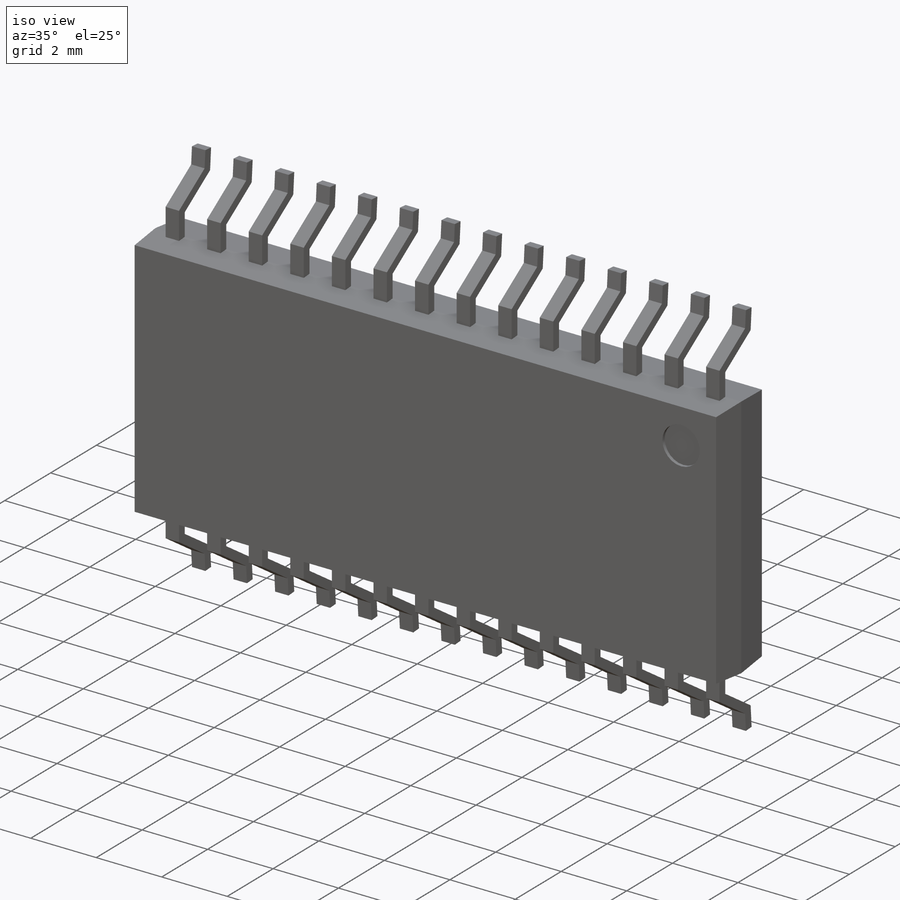
[diagram: iso view]
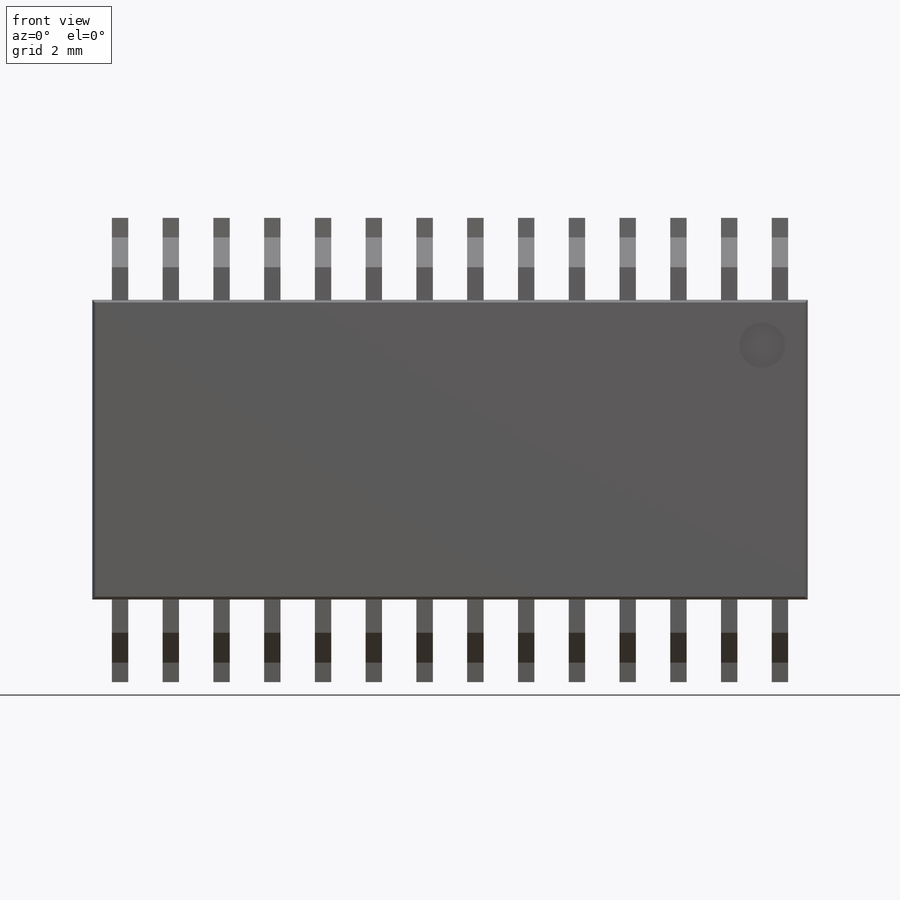
[diagram: front view]
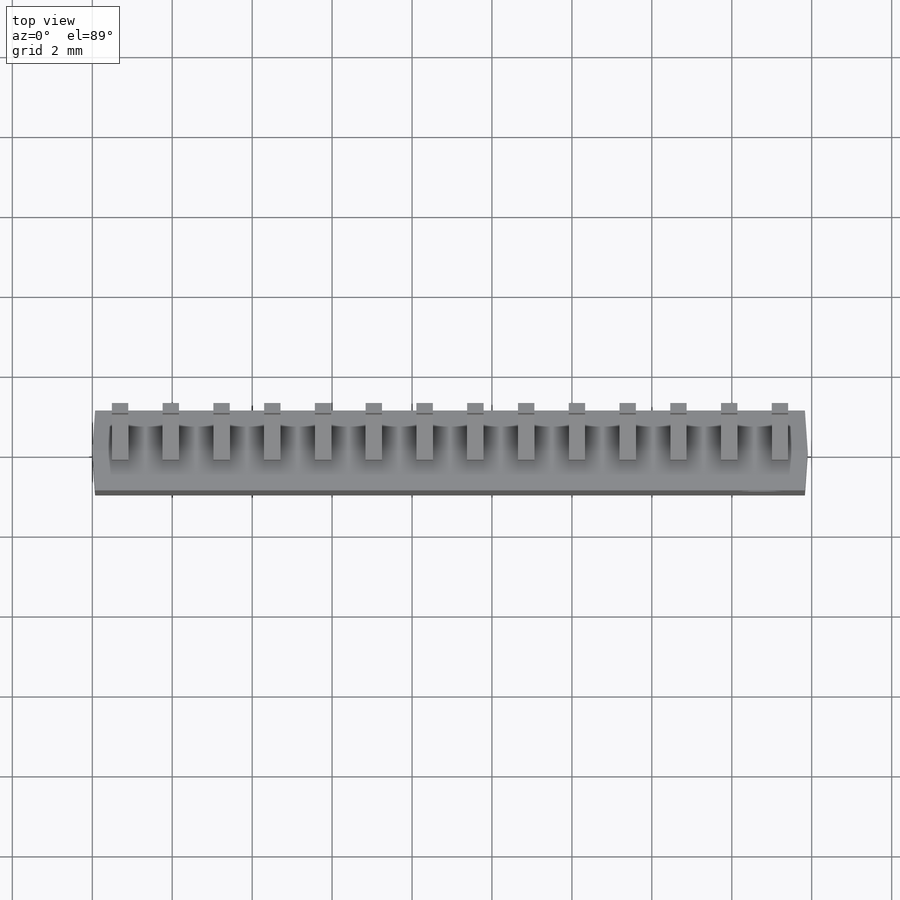
[diagram: top view]
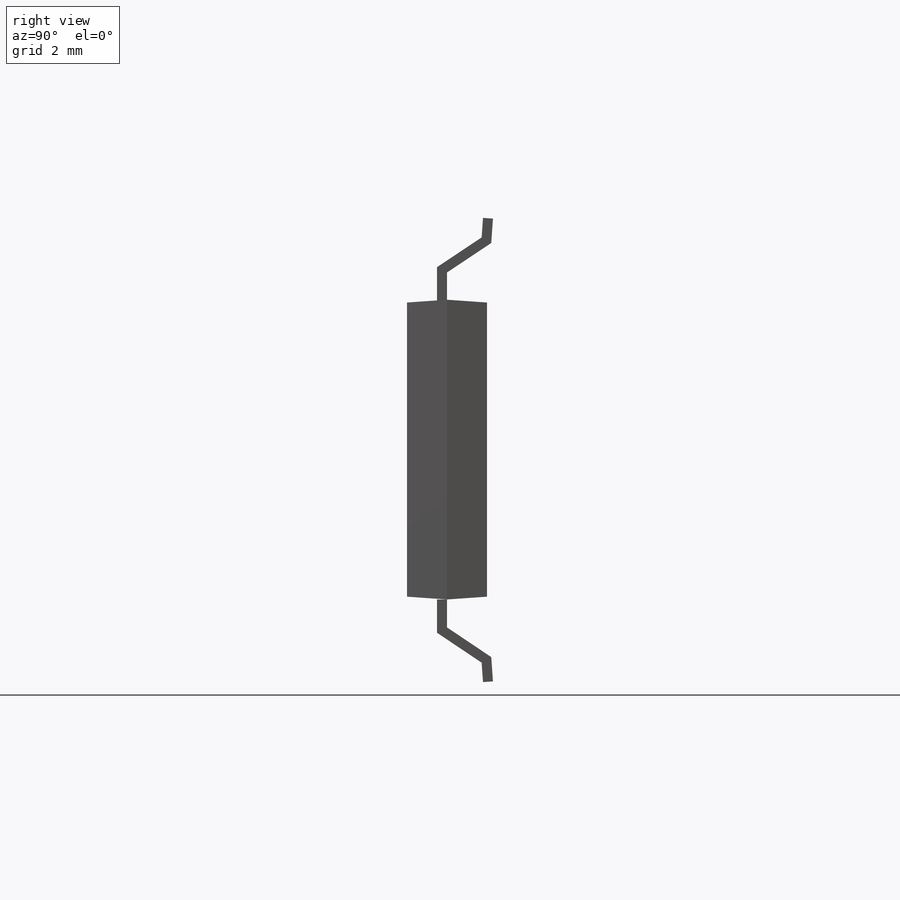
[diagram: right view]
SOLIDWORKS PART (.sldprt)
format: sldprt  version: not decoded by parser v0  size: 403,968 bytes
history: native  units: mm
features: sketch x4, extrude x2, plane x2, material x1, pattern_linear x1, mirror x1, cut_extrude x1 (+13 scaffold rows collapsed)
feature tree (25):
  scaffold x13  (default folders/planes/origin — collapsed)
  material  "Material <not specified>"
  sketch  "Sketch1"  dims[D1=17.9mm D2=7.5mm]
  extrude  "Boss-Extrude1"  Depth=1mm
  sketch  "Sketch2"
  extrude  "Boss-Extrude2"  Depth=1mm
  plane  "Plane1"  Offset=0.695mm
  sketch  "Sketch3"  dims[c1.D1=2.05mm c1.D2=0.6096mm c1.D3=~0.627494mm c2.D3=4.0deg c2.D4=0.15mm c2.D5=0.7mm c2.D1=0.41mm c3.D5=0.25mm c3.D6=1.0mm c3.D7=5.0mm]
  pattern_linear  "LPattern1"  Count1=14 Count2=1 Spacing1=1.27mm Spacing2=2.54mm
  plane  "Plane2"  Offset=3.74mm
  mirror  "Mirror3"
  sketch  "Sketch4"  dims[D1=1.14mm D2=1.14mm D3=1.14mm]
  cut_extrude  "Cut-Extrude1"  Depth=0.1mm
decode coverage: 7 of 9 modeling features carry decoded parameters
note: ~ marks probable driven/reference dimensions
note: suppression state not decoded; provenance and decode notes live in map.json
